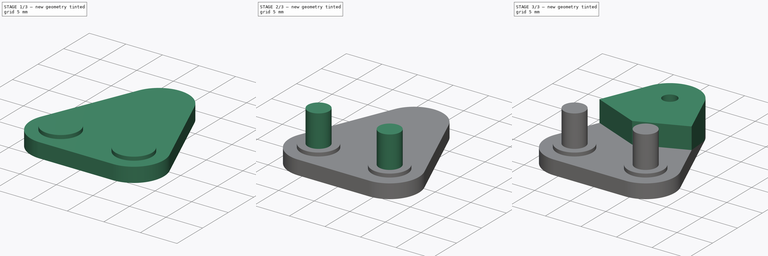
[diagram: build sequence overview — one tinted view per stage of 3, left to right]
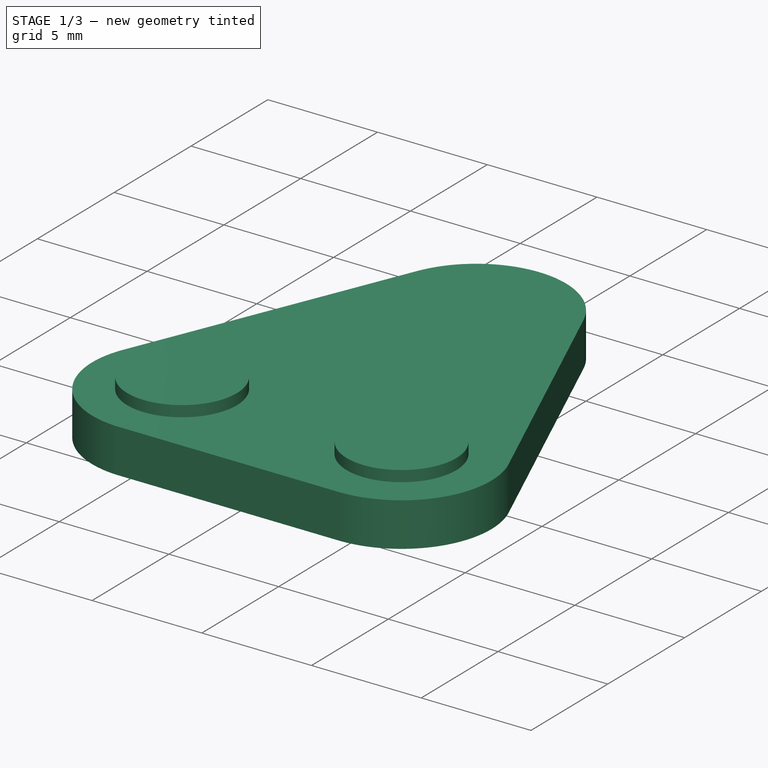
[diagram: stage 1 of 3 — iso view after this stage's code; geometry added in this stage tinted green]
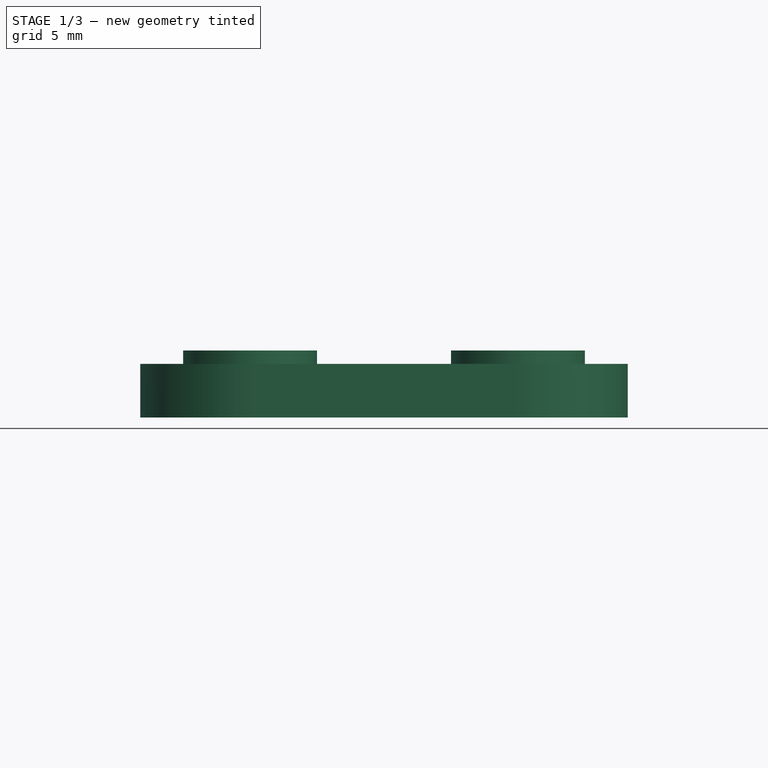
[diagram: stage 1 of 3 — front view after this stage's code; geometry added in this stage tinted green]
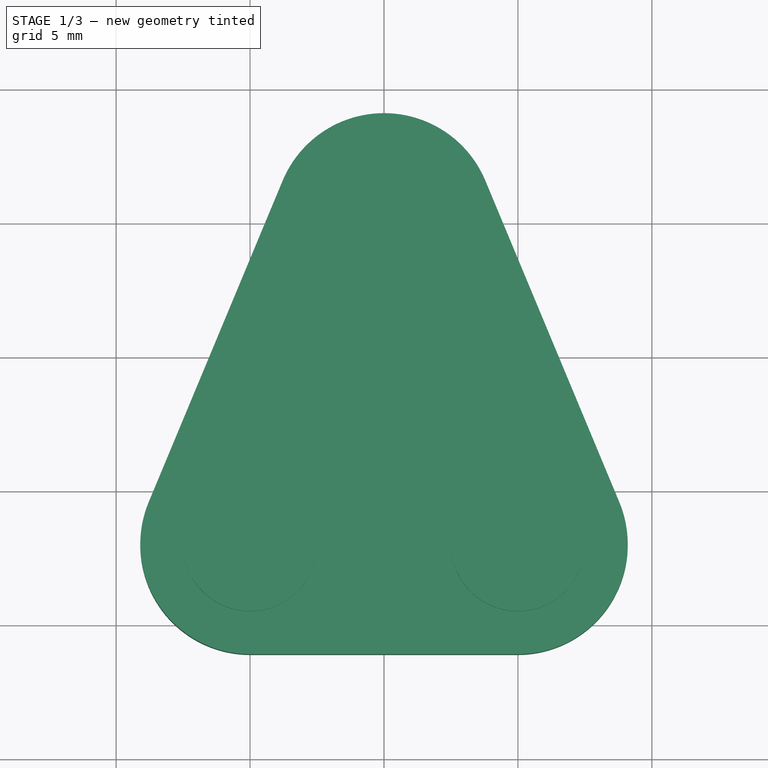
[diagram: stage 1 of 3 — top view after this stage's code; geometry added in this stage tinted green]
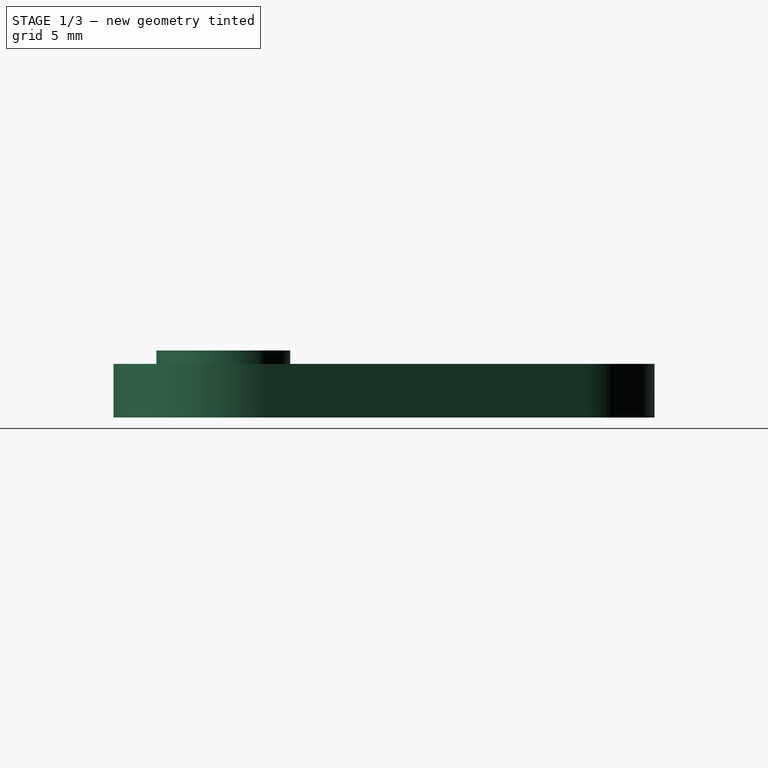
[diagram: stage 1 of 3 — right view after this stage's code; geometry added in this stage tinted green]
FCSTD DOCUMENT  (FreeCAD 1.0R39285 (Git))
Label: TBoneLinkageBottom
License: All rights reserved
LicenseURL: https://en.wikipedia.org/wiki/All_rights_reserved
objects: Sketcher::SketchObject×5, PartDesign::Pad×4, App::Link×1, PartDesign::Pocket×1, PartDesign::Body×1, App::Part×1
note: 26 computed .brp shape members not serialized (recipe doc carries the construction recipe); baked Part::Feature solids carry a one-line shape summary decoded from their .brp
EXTERNAL_REF file=../../Models/SteeringAckermannModel.FCStd obj=Spreadsheet

FEATURE [App::Link] Link  label="SteeringAckermannSpreadsheet"
  LinkedObject = -> <external ../../Models/SteeringAckermannModel.FCStd>#Spreadsheet
FEATURE [Sketcher::SketchObject] Sketch
  ArcFitTolerance = 1e-06
  AttachmentSupport = -> [XY_Plane001]
  FullyConstrained = true
  MakeInternals = false
  MapMode = 5
  expr: Constraints[4] = <<SteeringAckermannSpreadsheet>>.servolinkagelength
  expr: Constraints[5] = <<SteeringAckermannSpreadsheet>>.servolinkagesep
  sketch-geometry (8):
    g0: LineSegment [constr] StartX=0 StartY=0 StartZ=0 EndX=0 EndY=-12 EndZ=0
    g1: LineSegment [constr] StartX=-5 StartY=-12 StartZ=0 EndX=5 EndY=-12 EndZ=0
    g2: ArcOfCircle CenterX=0 CenterY=0 CenterZ=0 NormalX=0 NormalY=0 NormalZ=1 AngleXU=0 Radius=4.1 StartAngle=0.394791 EndAngle=2.7468
    g3: ArcOfCircle CenterX=-5 CenterY=-12 CenterZ=0 NormalX=0 NormalY=0 NormalZ=1 AngleXU=0 Radius=4.1 StartAngle=2.7468 EndAngle=4.71239
    g4: ArcOfCircle CenterX=5 CenterY=-12 CenterZ=0 NormalX=0 NormalY=0 NormalZ=1 AngleXU=0 Radius=4.1 StartAngle=4.71239 EndAngle=6.67798
    g5: LineSegment StartX=-8.78462 StartY=-10.4231 StartZ=0 EndX=-3.78462 EndY=1.57692 EndZ=0
    g6: LineSegment StartX=3.78462 StartY=1.57692 StartZ=0 EndX=8.78462 EndY=-10.4231 EndZ=0
    g7: LineSegment StartX=5 StartY=-16.1 StartZ=0 EndX=-5 EndY=-16.1 EndZ=0
  constraints (18):
    c: Coincident(g0,g-1)
    c: Vertical(g0)
    c: Symmetric(g1,g1,g0)
    c: Horizontal(g1)
    c: DistanceY(g0,g0) = 12
    c: DistanceX(g1,g1) = 10
    c: Coincident(g2,g0)
    c: Coincident(g3,g1)
    c: Coincident(g4,g1)
    c: Horizontal(g7)
    c: Tangent(g5,g2) = 1.5708
    c: Tangent(g5,g3) = 1.5708
    c: Tangent(g7,g3) = 1.5708
    c: Tangent(g7,g4) = 1.5708
    c: Tangent(g6,g4) = 1.5708
    c: Tangent(g6,g2) = 1.5708
    c: Radius(g2) = 4.1
    c: Radius(g3) = 4.1
FEATURE [PartDesign::Pad] Pad
  Direction = (0,0,1)
  Length = 2
  Length2 = 10
  Profile = -> Sketch
  ReferenceAxis = -> Sketch [N_Axis]
  Refine = true
  Suppressed = false
  Type = 0
FEATURE [Sketcher::SketchObject] Sketch001
  ArcFitTolerance = 1e-06
  AttachmentSupport = -> [Pad]
  ExternalGeometry = -> [Sketch]
  FullyConstrained = true
  MakeInternals = false
  MapMode = 5
  Placement = pos=(0,0,2) rot=(0,0,1;0rad)
  sketch-geometry (2):
    g0: Circle CenterX=-5 CenterY=-12 CenterZ=0 NormalX=0 NormalY=0 NormalZ=1 AngleXU=0 Radius=2.5
    g1: Circle CenterX=5 CenterY=-12 CenterZ=0 NormalX=0 NormalY=0 NormalZ=1 AngleXU=0 Radius=2.5
  constraints (4):
    c: Coincident(g0,g-3)
    c: Coincident(g1,g-4)
    c: Diameter(g0) = 5
    c: Equal(g0,g1)
FEATURE [PartDesign::Pad] Pad001
  BaseFeature = -> Pad
  Direction = (0,0,1)
  Length = 0.5
  Length2 = 10
  Profile = -> Sketch001
  ReferenceAxis = -> Sketch001 [N_Axis]
  Refine = true
  Suppressed = false
  Type = 0
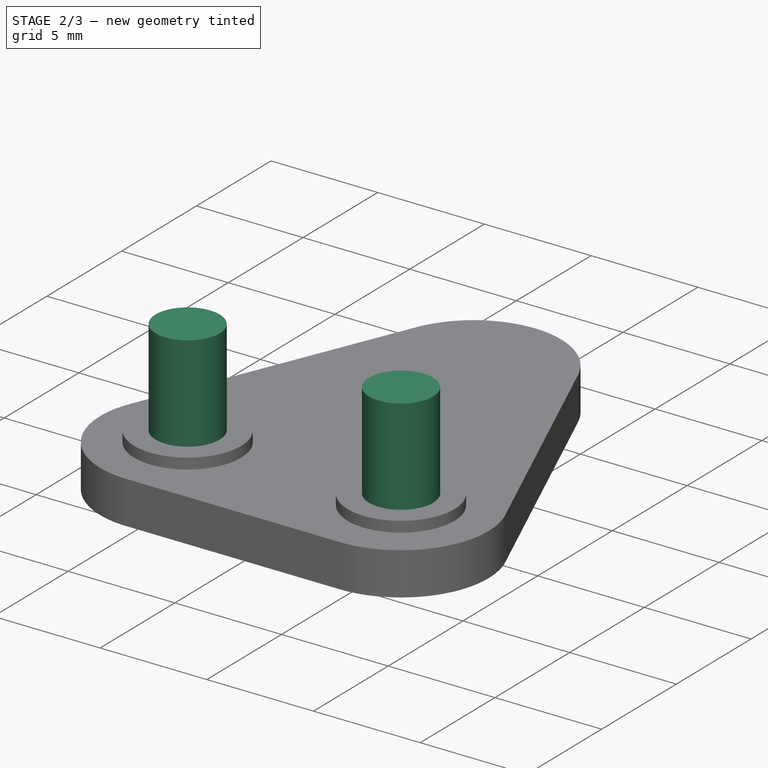
[diagram: stage 2 of 3 — iso view after this stage's code; geometry added in this stage tinted green]
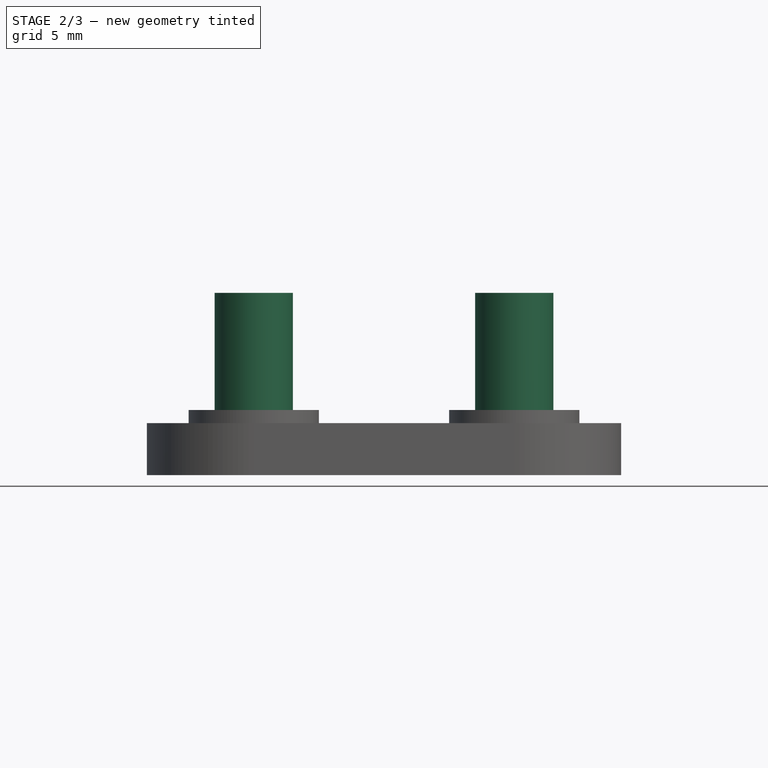
[diagram: stage 2 of 3 — front view after this stage's code; geometry added in this stage tinted green]
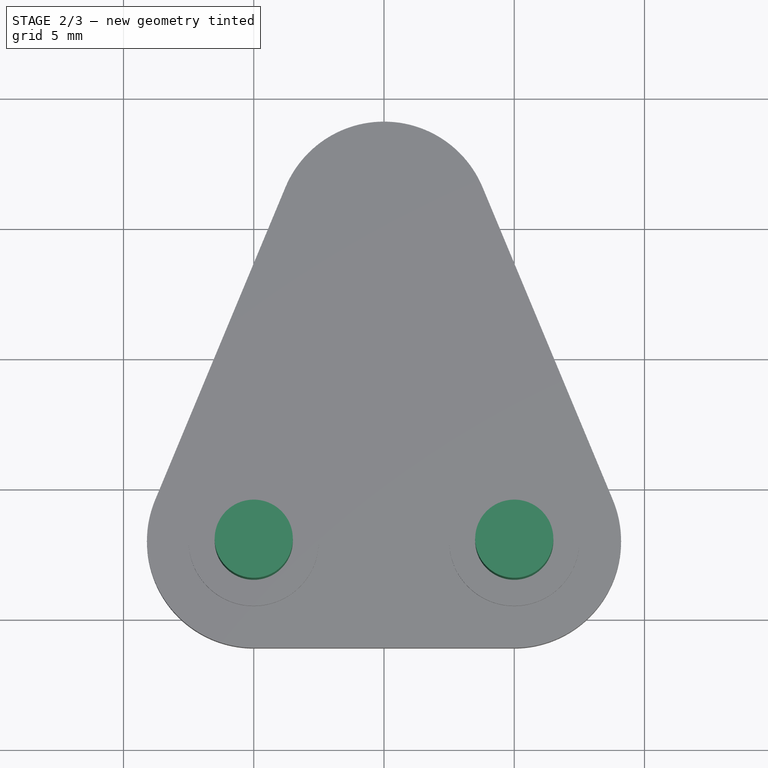
[diagram: stage 2 of 3 — top view after this stage's code; geometry added in this stage tinted green]
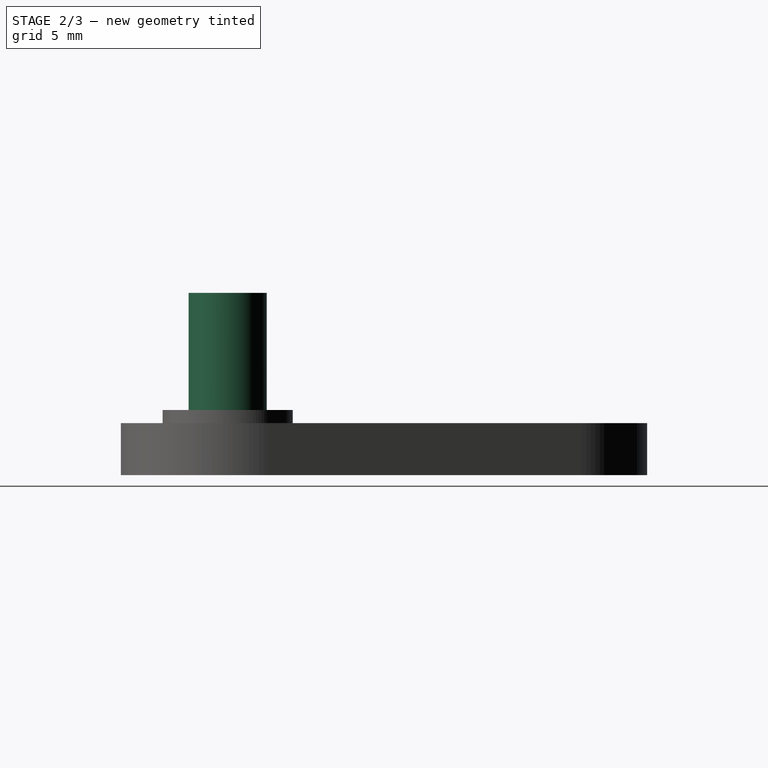
[diagram: stage 2 of 3 — right view after this stage's code; geometry added in this stage tinted green]
FEATURE [Sketcher::SketchObject] Sketch002
  ArcFitTolerance = 1e-06
  AttachmentSupport = -> [Pad001]
  ExternalGeometry = -> [Sketch]
  FullyConstrained = true
  MakeInternals = false
  MapMode = 5
  Placement = pos=(0,0,2.5) rot=(0,0,1;0rad)
  sketch-geometry (2):
    g0: Circle CenterX=-5 CenterY=-12 CenterZ=0 NormalX=0 NormalY=0 NormalZ=1 AngleXU=0 Radius=1.5
    g1: Circle CenterX=5 CenterY=-12 CenterZ=0 NormalX=0 NormalY=0 NormalZ=1 AngleXU=0 Radius=1.5
  constraints (4):
    c: Diameter(g0) = 3
    c: Coincident(g0,g-3)
    c: Coincident(g1,g-4)
    c: Equal(g0,g1)
FEATURE [PartDesign::Pad] Pad002
  BaseFeature = -> Pad001
  Direction = (0,0,1)
  Length = 4.5
  Length2 = 10
  Profile = -> Sketch002
  ReferenceAxis = -> Sketch002 [N_Axis]
  Refine = true
  Suppressed = false
  Type = 0
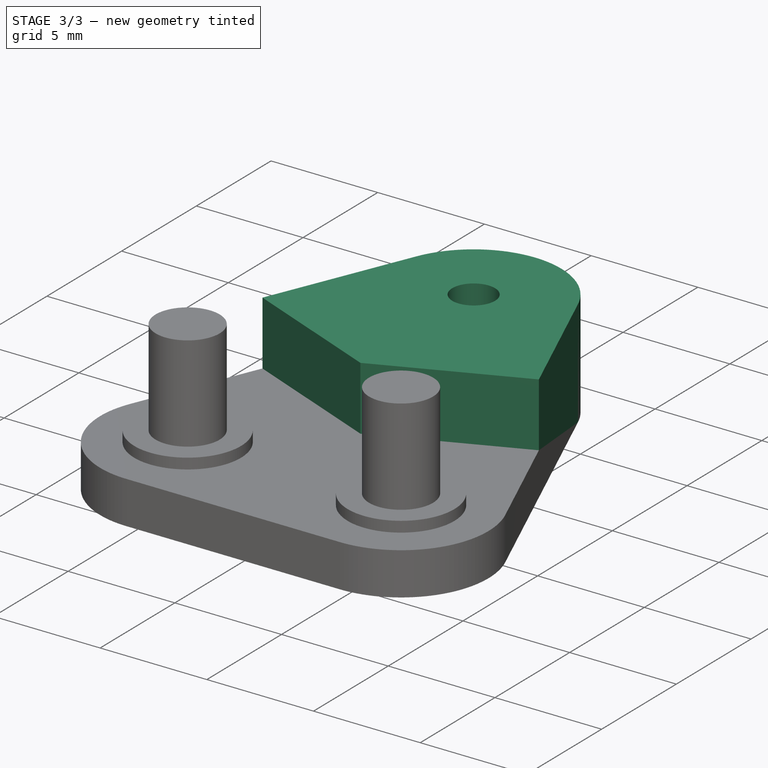
[diagram: stage 3 of 3 — iso view after this stage's code; geometry added in this stage tinted green]
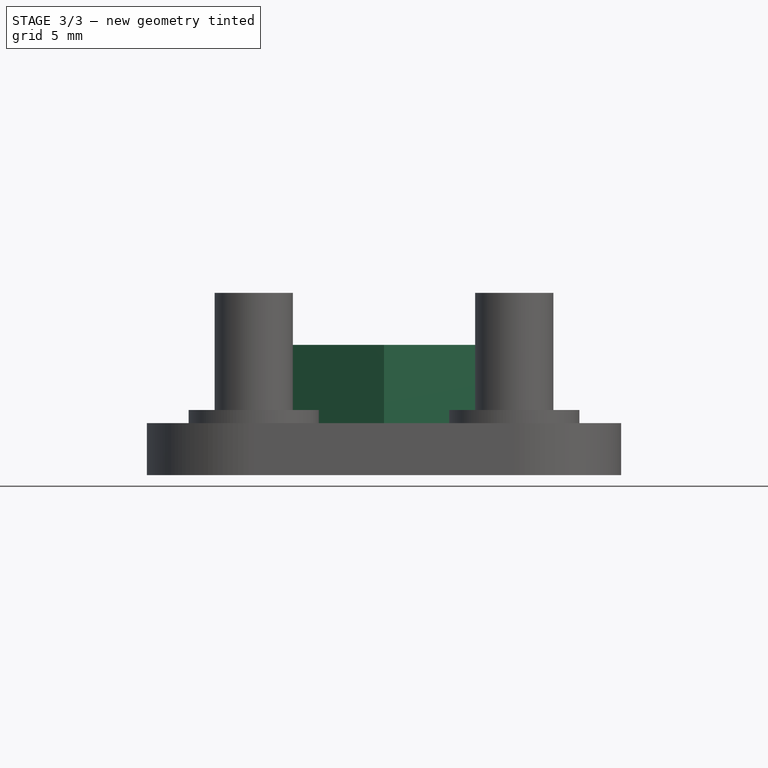
[diagram: stage 3 of 3 — front view after this stage's code; geometry added in this stage tinted green]
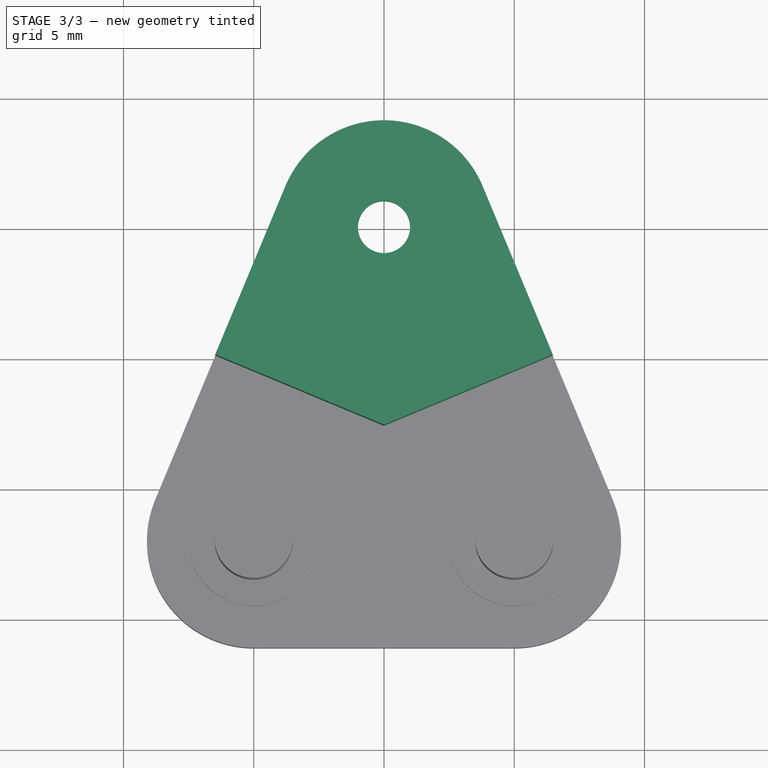
[diagram: stage 3 of 3 — top view after this stage's code; geometry added in this stage tinted green]
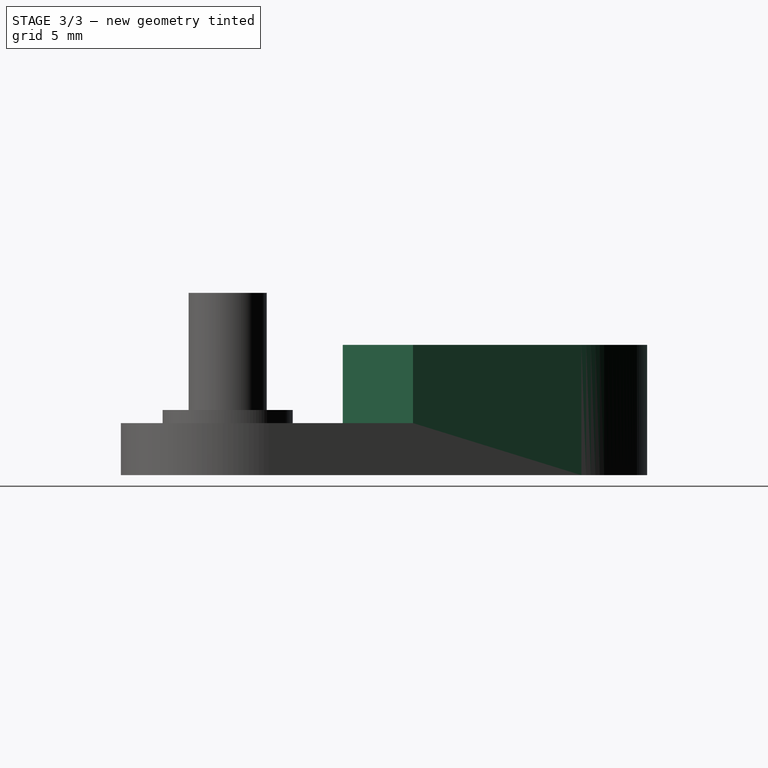
[diagram: stage 3 of 3 — right view after this stage's code; geometry added in this stage tinted green]
FEATURE [Sketcher::SketchObject] Sketch003
  ArcFitTolerance = 1e-06
  AttachmentSupport = -> [Pad002]
  ExternalGeometry = -> [Sketch]
  FullyConstrained = true
  MakeInternals = false
  MapMode = 5
  Placement = pos=(0,0,2) rot=(0,0,1;0rad)
  sketch-geometry (6):
    g0: ArcOfCircle CenterX=0 CenterY=0 CenterZ=0 NormalX=0 NormalY=0 NormalZ=1 AngleXU=0 Radius=4.1 StartAngle=0.394791 EndAngle=2.7468
    g1: LineSegment StartX=-3.78462 StartY=1.57692 StartZ=0 EndX=-6.47692 EndY=-4.88462 EndZ=0
    g2: LineSegment StartX=3.78462 StartY=1.57692 StartZ=0 EndX=6.47692 EndY=-4.88462 EndZ=0
    g3: LineSegment StartX=-6.47692 StartY=-4.88462 StartZ=0 EndX=-9e-16 EndY=-7.58333 EndZ=0
    g4: LineSegment StartX=-9e-16 StartY=-7.58333 StartZ=0 EndX=6.47692 EndY=-4.88462 EndZ=0
    g5: Circle CenterX=0 CenterY=0 CenterZ=0 NormalX=0 NormalY=0 NormalZ=1 AngleXU=0 Radius=1
  constraints (14):
    c: Coincident(g0,g-1)
    c: Coincident(g3,g1)
    c: Coincident(g4,g2)
    c: Tangent(g1,g0) = -1.5708
    c: Tangent(g2,g0) = 1.5708
    c: Coincident(g0,g-6)
    c: PointOnObject(g2,g-7)
    c: Equal(g1,g2)
    c: Distance(g1,g1) = 7
    c: Perpendicular(g3,g1)
    c: Coincident(g3,g4)
    c: Equal(g3,g4)
    c: Diameter(g5) = 2
    c: Coincident(g5,g0)
FEATURE [PartDesign::Pad] Pad003
  BaseFeature = -> Pad002
  Direction = (0,0,1)
  Length = 3
  Length2 = 10
  Profile = -> Sketch003
  ReferenceAxis = -> Sketch003 [N_Axis]
  Refine = true
  Suppressed = false
  Type = 0
FEATURE [Sketcher::SketchObject] Sketch004
  ArcFitTolerance = 1e-06
  AttachmentSupport = -> [Pad003]
  ExternalGeometry = -> [Sketch]
  FullyConstrained = true
  MakeInternals = false
  MapMode = 5
  Placement = pos=(0,0,0) rot=(1,0,0;3.14159rad)
  sketch-geometry (1):
    g0: Circle CenterX=0 CenterY=0 CenterZ=0 NormalX=0 NormalY=0 NormalZ=1 AngleXU=0 Radius=2.5
  constraints (2):
    c: Diameter(g0) = 5
    c: Coincident(g0,g-1)
FEATURE [PartDesign::Pocket] Pocket
  BaseFeature = -> Pad003
  Direction = (0,0,1)
  Length = 4
  Length2 = 5
  Profile = -> Sketch004
  ReferenceAxis = -> Sketch004 [N_Axis]
  Refine = true
  Suppressed = false
  Type = 0
FEATURE [PartDesign::Body] Body  label="TBoneLinkageBottomBody"
  AllowCompound = false
  Group = -> [Sketch,Pad,Sketch001,Pad001,Sketch002,Pad002,Sketch003,Pad003,Sketch004,Pocket]
  Origin = -> Origin001
  Tip = -> Pocket
FEATURE [App::Part] Part  label="TBoneLinkageBottomPart"
  Group = -> [Body]
  Origin = -> Origin

RESOLVED EXTERNAL PARTS (link-assembly join: the EXTERNAL_REF files above that resolve inside this repo's crawl, each included once):
---- part ../../Models/SteeringAckermannModel.FCStd = doc fcstd_253a2b1971f8 ----
FCSTD DOCUMENT  (FreeCAD 1.0R39109 (Git))
Label: SteeringAckermannModel
License: All rights reserved
LicenseURL: https://en.wikipedia.org/wiki/All_rights_reserved
objects: Sketcher::SketchObject×2, Spreadsheet::Sheet×1, App::Part×1
note: 4 computed .brp shape members not serialized (recipe doc carries the construction recipe); baked Part::Feature solids carry a one-line shape summary decoded from their .brp

FEATURE [Sketcher::SketchObject] Sketch001  label="SteeringAckermannModel"
  ArcFitTolerance = 1e-06
  AttachmentSupport = -> [XY_Plane001]
  FullyConstrained = true
  MakeInternals = false
  MapMode = 5
  expr: .Constraints.BackTrackLength = <<SteeringAckermannSpreadsheet>>.track
  expr: .Constraints.LeftTransferLinkageLength = <<SteeringAckermannSpreadsheet>>.transferlinkagelength
  expr: .Constraints.LeftWheelDepth = <<SteeringAckermannSpreadsheet>>.wheeldepth
  expr: .Constraints.LeftWheelDiameter = <<SteeringAckermannSpreadsheet>>.wheeldia
  expr: .Constraints.LeftWheelLinkageAngle = <<SteeringAckermannSpreadsheet>>.wheellinkageangle
  expr: .Constraints.LeftWheelLinkageLength = <<SteeringAckermannSpreadsheet>>.wheellinkagelength
  expr: .Constraints.LeftWheelLinkageOffset = <<SteeringAckermannSpreadsheet>>.wheellinkageoffset
  expr: .Constraints.RightTransferLinkageLength = <<SteeringAckermannSpreadsheet>>.transferlinkagelength
  expr: .Constraints.RightWheelDepth = <<SteeringAckermannSpreadsheet>>.wheeldepth
  expr: .Constraints.RightWheelDiameter = <<SteeringAckermannSpreadsheet>>.wheeldia
  expr: .Constraints.RightWheelLinkageAngle = <<SteeringAckermannSpreadsheet>>.wheellinkageangle
  expr: .Constraints.RightWheelLinkageLength = <<SteeringAckermannSpreadsheet>>.wheellinkagelength
  expr: .Constraints.RightWheelLinkageOffset = <<SteeringAckermannSpreadsheet>>.wheellinkageoffset
  expr: .Constraints.ServoLinkageLength = <<SteeringAckermannSpreadsheet>>.servolinkagelength
  expr: .Constraints.ServoLinkageSeperation = <<SteeringAckermannSpreadsheet>>.servolinkagesep
  expr: .Constraints.ServoPositionOffset = <<SteeringAckermannSpreadsheet>>.servoposoffset
  expr: .Constraints.TrackAdj = Spreadsheet.trackadj
  expr: .Constraints.Wheelbase = <<SteeringAckermannSpreadsheet>>.wheelbase
  sketch-geometry (32):
    g0: LineSegment StartX=-34 StartY=0 StartZ=0 EndX=34 EndY=0 EndZ=0
    g1: LineSegment StartX=0 StartY=0 StartZ=0 EndX=0 EndY=-194 EndZ=0
    g2: GeomPoint [constr] X=0 Y=-4 Z=0
    g3: LineSegment StartX=0 StartY=-4 StartZ=0 EndX=8.69964 EndY=-12.2654 EndZ=0
    g4: LineSegment StartX=5.25574 StartY=-15.8902 StartZ=0 EndX=12.1435 EndY=-8.64052 EndZ=0
    g5: LineSegment StartX=5.25574 StartY=-15.8902 StartZ=0 EndX=-25.9767 EndY=-8.92334 EndZ=0
    g6: LineSegment StartX=-34 StartY=0 StartZ=0 EndX=-25.9767 EndY=-8.92334 EndZ=0
    g7: LineSegment StartX=-34 StartY=0 StartZ=0 EndX=-42.0301 EndY=-11.4681 EndZ=0
    g8: LineSegment StartX=12.1435 StartY=-8.64052 StartZ=0 EndX=44.0733 EndY=-6.5214 EndZ=0
    g9: LineSegment StartX=44.0733 StartY=-6.5214 StartZ=0 EndX=34 EndY=0 EndZ=0
    g10: LineSegment StartX=34 StartY=0 StartZ=0 EndX=44.0638 EndY=9.73246 EndZ=0
    g11: LineSegment StartX=-25.9767 StartY=-37.3581 StartZ=0 EndX=-71.8492 EndY=-5.23781 EndZ=0
    g12: LineSegment StartX=-71.8492 StartY=-5.23781 StartZ=0 EndX=-58.0834 EndY=14.4218 EndZ=0
    g13: LineSegment StartX=-58.0834 StartY=14.4218 StartZ=0 EndX=-12.2109 EndY=-17.6984 EndZ=0
    g14: LineSegment StartX=-12.2109 StartY=-17.6984 StartZ=0 EndX=-25.9767 EndY=-37.3581 EndZ=0
    g15: GeomPoint [constr] X=-42.0301 Y=-11.4681 Z=0
    g16: LineSegment StartX=54.9026 StartY=-18.7372 StartZ=0 EndX=15.9728 EndY=21.5179 EndZ=0
    g17: LineSegment StartX=15.9728 StartY=21.5179 StartZ=0 EndX=33.2249 EndY=38.2021 EndZ=0
    g18: LineSegment StartX=33.2249 StartY=38.2021 StartZ=0 EndX=72.1548 EndY=-2.05296 EndZ=0
    g19: LineSegment StartX=72.1548 StartY=-2.05296 StartZ=0 EndX=54.9026 EndY=-18.7372 EndZ=0
    g20: GeomPoint [constr] X=44.0638 Y=9.73246 Z=0
    g21: LineSegment StartX=-48 StartY=-194 StartZ=0 EndX=48 EndY=-194 EndZ=0
    g22: LineSegment StartX=-60 StartY=-222 StartZ=0 EndX=-60 EndY=-166 EndZ=0
    g23: LineSegment StartX=-60 StartY=-166 StartZ=0 EndX=-36 EndY=-166 EndZ=0
    g24: LineSegment StartX=-36 StartY=-166 StartZ=0 EndX=-36 EndY=-222 EndZ=0
    g25: LineSegment StartX=-36 StartY=-222 StartZ=0 EndX=-60 EndY=-222 EndZ=0
    g26: GeomPoint [constr] X=-48 Y=-194 Z=0
    g27: LineSegment StartX=36 StartY=-222 StartZ=0 EndX=36 EndY=-166 EndZ=0
    g28: LineSegment StartX=36 StartY=-166 StartZ=0 EndX=60 EndY=-166 EndZ=0
    g29: LineSegment StartX=60 StartY=-166 StartZ=0 EndX=60 EndY=-222 EndZ=0
    g30: LineSegment StartX=60 StartY=-222 StartZ=0 EndX=36 EndY=-222 EndZ=0
    g31: GeomPoint [constr] X=48 Y=-194 Z=0
  constraints (81):
    c: Distance(g1) = 194  'Wheelbase'
    c: Distance(g0) = 68  'TrackAdj'
    c: DistanceY(g1,g2) = -4  'ServoPositionOffset'
    c: Distance(g3) = 12  'ServoLinkageLength'
    c: Distance(g4) = 10  'ServoLinkageSeperation'
    c: Distance(g5) = 32  'LeftTransferLinkageLength'
    c: Distance(g6) = 12  'LeftWheelLinkageLength'
    c: Distance(g7) = 14  'LeftWheelLinkageOffset'
    c: Angle(g7,g6) = 1.34321  'LeftWheelLinkageAngle'
    c: Distance(g13) = 56  'LeftWheelDiameter'
    c: Distance(g14) = 24  'LeftWheelDepth'
    c: Distance(g8) = 32  'RightTransferLinkageLength'
    c: Distance(g9) = 12  'RightWheelLinkageLength'
    c: Distance(g10) = 14  'RightWheelLinkageOffset'
    c: Angle(g9,g10) = 1.34321  'RightWheelLinkageAngle'
    c: Distance(g16) = 56  'RightWheelDiameter'
    c: Distance(g19) = 24  'RightWheelDepth'
    c: Angle(g1,g3) = 0.810991  'SteeringAngle'
    c: Distance(g21) = 96  'BackTrackLength'
    c: Coincident(g5,g4)
    c: Horizontal(g0)
    c: Symmetric(g0,g0,g-1)
    c: Coincident(g1,g-1)
    c: PointOnObject(g1,g-2)
    c: PointOnObject(g2,g-2)
    c: Coincident(g3,g2)
    c: Perpendicular(g3,g4)
    c: Symmetric(g4,g4,g3)
    c: Coincident(g6,g0)
    c: Coincident(g6,g5)
    c: Coincident(g7,g0)
    c: Coincident(g8,g4)
    c: Coincident(g9,g8)
    c: Coincident(g9,g0)
    c: Coincident(g10,g0)
    c: Coincident(g11,g12)
    c: Coincident(g12,g13)
    c: Coincident(g13,g14)
    c: Coincident(g14,g11)
    c: Symmetric(g12,g11,g15)
    c: Coincident(g15,g7)
    c: Perpendicular(g13,g7)
    c: Perpendicular(g14,g13)
    c: Perpendicular(g12,g13)
    c: Perpendicular(g11,g7)
    c: Coincident(g16,g17)
    c: Coincident(g17,g18)
    c: Coincident(g18,g19)
    c: Coincident(g19,g16)
    c: Symmetric(g17,g16,g20)
    c: Coincident(g20,g10)
    c: Perpendicular(g16,g10)
    c: Perpendicular(g19,g16)
    c: Perpendicular(g17,g16)
    c: Perpendicular(g18,g10)
    c: Symmetric(g21,g21,g1)
    c: PointOnObject(g1,g21)
    c: Coincident(g22,g23)
    c: Coincident(g23,g24)
    c: Coincident(g24,g25)
    c: Coincident(g25,g22)
    c: Horizontal(g23)
    c: Horizontal(g25)
    c: Vertical(g22)
    c: Vertical(g24)
    c: Symmetric(g23,g22,g26)
    c: Coincident(g26,g21)
    c: Coincident(g27,g28)
    c: Coincident(g28,g29)
    c: Coincident(g29,g30)
    c: Coincident(g30,g27)
    c: Horizontal(g28)
    c: Horizontal(g30)
    c: Vertical(g27)
    c: Vertical(g29)
    c: Symmetric(g28,g27,g31)
    c: Coincident(g31,g21)
    c: Equal(g14,g25)
    c: Equal(g13,g24)
    c: Equal(g19,g30)
    c: Equal(g16,g27)
FEATURE [Spreadsheet::Sheet] Spreadsheet  label="SteeringAckermannSpreadsheet"
  cells = A1='CarDimension; B1='Value; C1='SteeringDimension; D1='Value; E1='CalculatedDimension; F1='Value; A2='BodyLength; B2=250; C2='ServoPositionOffset; D2(servoposoffset)=-4; E2='Wheelbase; F2(wheelbase)==B2 - B4; A3='BodyWidth; B3(bodywidth)=120; C3='ServoLinkageLength; D3(servolinkagelength)=12; E3='Track; F3(track)==B3 - B5; A4='WheelDiameter; B4(wheeldia)=56; C4='ServoLinkageTwoHoleSeperation; D4(servolinkagesep)=10; E4='TrackAdj; F4(trackadj)==F3 - D6 * 2; A5='WheelDepth; B5(wheeldepth)=24; C5='TransferLinkageLength; D5(transferlinkagelength)=32; C6='WheelLinkageOffset; D6(wheellinkageoffset)=14; C7='WheelLinkageLength; D7(wheellinkagelength)=12; C8='WheelLinkageAngle; D8(wheellinkageangle)=76.96
FEATURE [Sketcher::SketchObject] Sketch  label="SteeringAckermannModelLineOverlay"
  ArcFitTolerance = 1e-06
  AttachmentSupport = -> [XY_Plane001]
  ExternalGeometry = -> [Sketch001]
  FullyConstrained = true
  MakeInternals = false
  MapMode = 5
  sketch-geometry (3):
    g0: LineSegment StartX=-34 StartY=0 StartZ=0 EndX=-607.576 EndY=-819.152 EndZ=0
    g1: LineSegment StartX=44.0638 StartY=9.73246 StartZ=0 EndX=-674.776 EndY=-685.443 EndZ=0
    g2: LineSegment StartX=-500 StartY=-194 StartZ=0 EndX=500 EndY=-194 EndZ=0
  constraints (9):
    c: Coincident(g0,g-3)
    c: Coincident(g1,g-4)
    c: Horizontal(g2)
    c: Symmetric(g2,g2,g-5)
    c: Parallel(g-3,g0)
    c: Parallel(g-4,g1)
    c: Distance(g2) = 1000
    c: Distance(g1) = 1000
    c: Distance(g0) = 1000
FEATURE [App::Part] Part  label="SteeringAckermannModelPart-Abstact"
  Group = -> [Sketch001,Sketch]
  Origin = -> Origin001
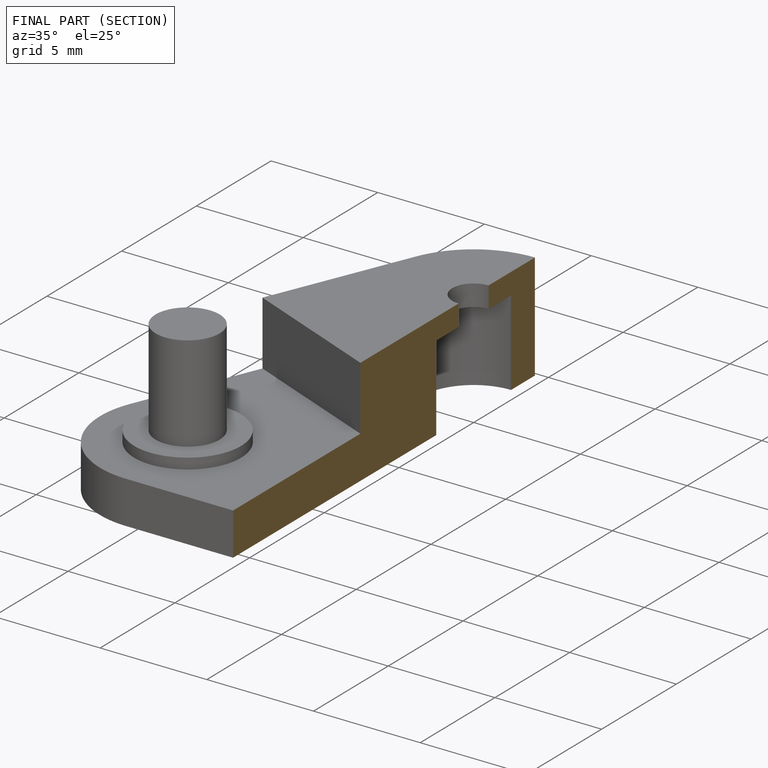
[diagram: finished part — half-section view (interior)]
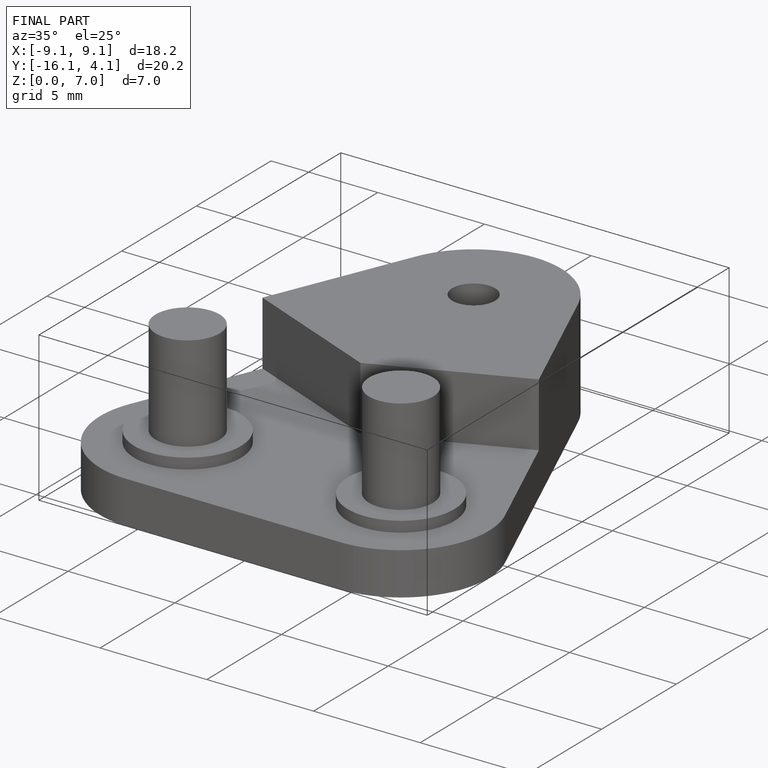
[diagram: finished part — iso view with bounding-box wireframe]
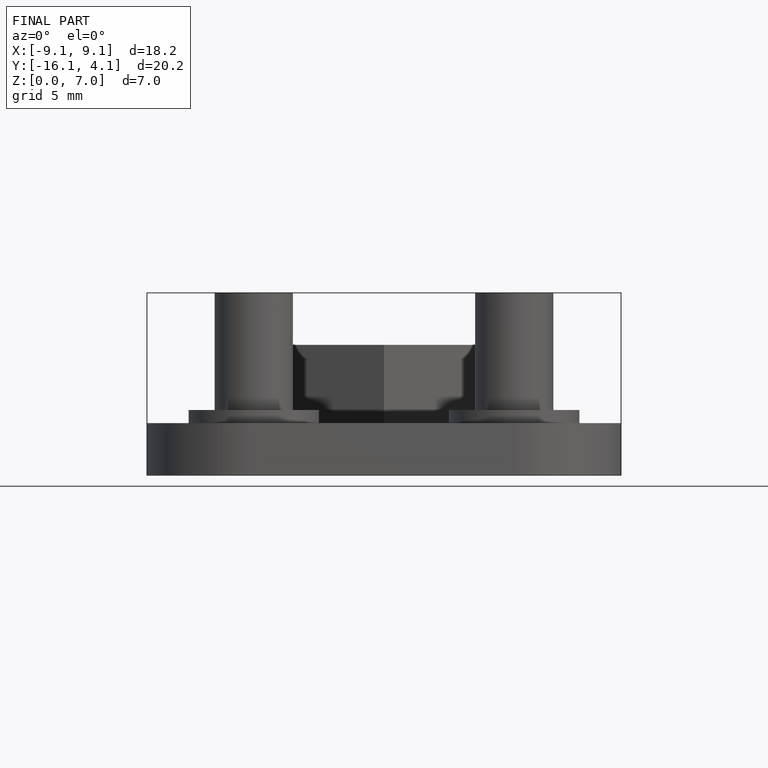
[diagram: finished part — front view with bounding-box wireframe]
